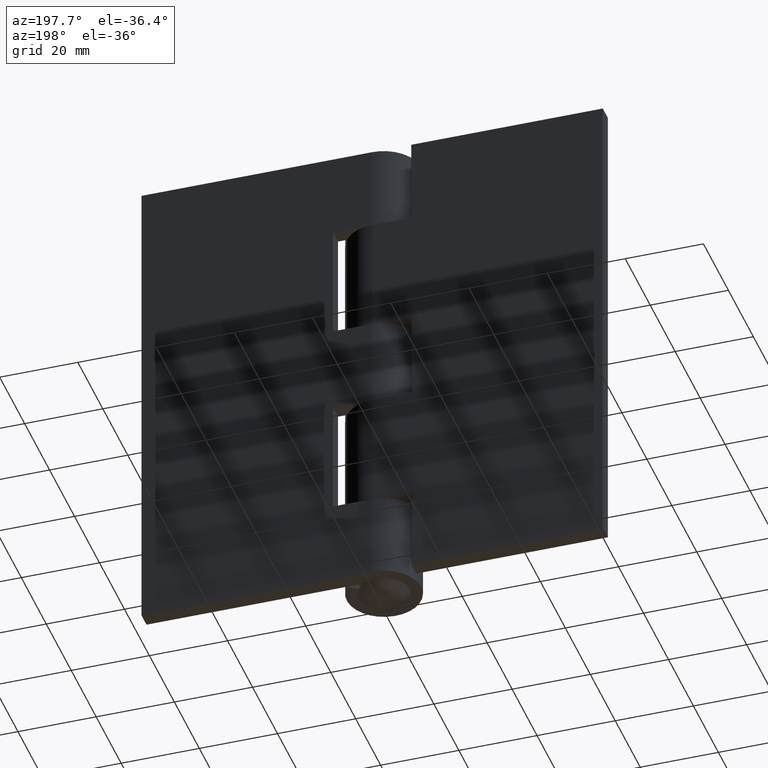
[diagram: clean part render]
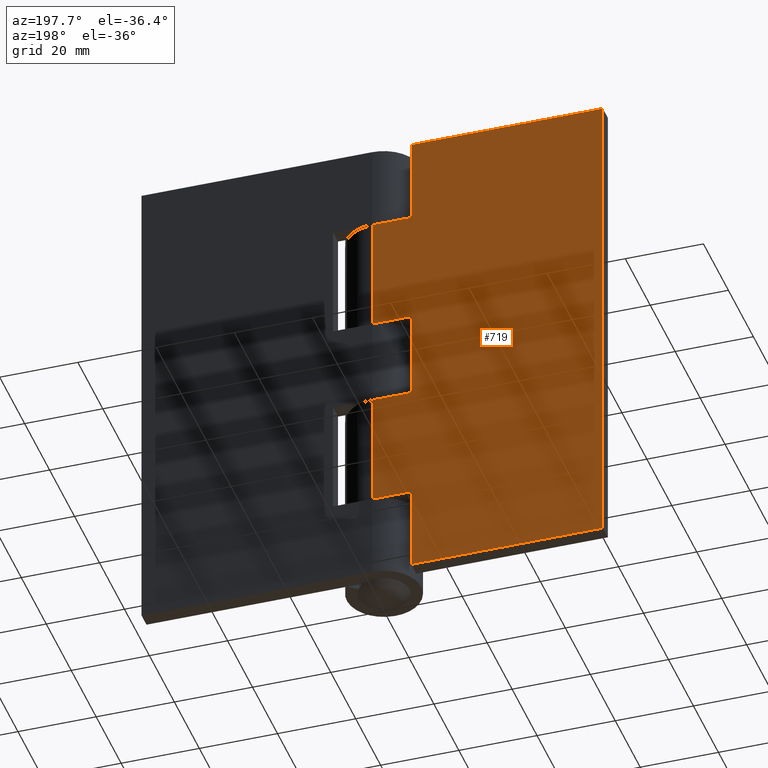
[diagram: same view with one face highlighted and labeled with its STEP entity id]
A machine part, auxiliary view. The second image highlights one B-rep face of the part: STEP entity #719.
In plain terms, the highlighted face is a freeform B-spline surface patch.
Its self-contained STEP definition (entity closure, byte-faithful):
#86=CARTESIAN_POINT('',(0.0,9.500000000000000,52.0));
#87=VERTEX_POINT('',#86);
#107=CARTESIAN_POINT('',(-10.0,9.500000000000000,52.0));
#108=VERTEX_POINT('',#107);
#109=CARTESIAN_POINT('',(-10.0,9.500000000000000,52.0));
#110=CARTESIAN_POINT('',(0.0,9.500000000000000,52.0));
#111=QUASI_UNIFORM_CURVE('',1,(#109,#110),.UNSPECIFIED.,.F.,.U.);
#112=EDGE_CURVE('',#108,#87,#111,.T.);
#136=CARTESIAN_POINT('',(-10.0,9.500000000000000,75.0));
#137=VERTEX_POINT('',#136);
#143=CARTESIAN_POINT('',(0.0,9.500000000000000,75.0));
#144=VERTEX_POINT('',#143);
#145=CARTESIAN_POINT('',(0.0,9.500000000000000,75.0));
#146=CARTESIAN_POINT('',(-10.0,9.500000000000000,75.0));
#147=QUASI_UNIFORM_CURVE('',1,(#145,#146),.UNSPECIFIED.,.F.,.U.);
#148=EDGE_CURVE('',#144,#137,#147,.T.);
#211=CARTESIAN_POINT('',(-10.0,9.500000000000000,75.0));
#212=CARTESIAN_POINT('',(-10.0,9.500000000000000,52.0));
#213=QUASI_UNIFORM_CURVE('',1,(#211,#212),.UNSPECIFIED.,.F.,.U.);
#214=EDGE_CURVE('',#137,#108,#213,.T.);
#234=CARTESIAN_POINT('',(-10.0,9.500000000000000,0.0));
#235=VERTEX_POINT('',#234);
#241=CARTESIAN_POINT('',(-10.0,9.500000000000000,22.0));
#242=VERTEX_POINT('',#241);
#243=CARTESIAN_POINT('',(-10.0,9.500000000000000,0.0));
#244=CARTESIAN_POINT('',(-10.0,9.500000000000000,22.0));
#245=QUASI_UNIFORM_CURVE('',1,(#243,#244),.UNSPECIFIED.,.F.,.U.);
#246=EDGE_CURVE('',#235,#242,#245,.T.);
#269=CARTESIAN_POINT('',(0.0,9.500000000000000,22.0));
#270=VERTEX_POINT('',#269);
#271=CARTESIAN_POINT('',(-10.0,9.500000000000000,22.0));
#272=CARTESIAN_POINT('',(0.0,9.500000000000000,22.0));
#273=QUASI_UNIFORM_CURVE('',1,(#271,#272),.UNSPECIFIED.,.F.,.U.);
#274=EDGE_CURVE('',#242,#270,#273,.T.);
#340=CARTESIAN_POINT('',(-10.0,9.500000000000000,105.0));
#341=VERTEX_POINT('',#340);
#347=CARTESIAN_POINT('',(-10.0,9.500000000000000,127.0));
#348=VERTEX_POINT('',#347);
#349=CARTESIAN_POINT('',(-10.0,9.500000000000000,127.0));
#350=CARTESIAN_POINT('',(-10.0,9.500000000000000,105.0));
#351=QUASI_UNIFORM_CURVE('',1,(#349,#350),.UNSPECIFIED.,.F.,.U.);
#352=EDGE_CURVE('',#348,#341,#351,.T.);
#402=CARTESIAN_POINT('',(0.0,9.500000000000000,105.0));
#403=VERTEX_POINT('',#402);
#423=CARTESIAN_POINT('',(-10.0,9.500000000000000,105.0));
#424=CARTESIAN_POINT('',(0.0,9.500000000000000,105.0));
#425=QUASI_UNIFORM_CURVE('',1,(#423,#424),.UNSPECIFIED.,.F.,.U.);
#426=EDGE_CURVE('',#341,#403,#425,.T.);
#437=CARTESIAN_POINT('',(-59.0,9.500000000000000,0.0));
#438=VERTEX_POINT('',#437);
#453=CARTESIAN_POINT('',(-59.0,9.500000000000000,127.0));
#454=VERTEX_POINT('',#453);
#460=CARTESIAN_POINT('',(-59.0,9.500000000000000,127.0));
#461=CARTESIAN_POINT('',(-59.0,9.500000000000000,0.0));
#462=QUASI_UNIFORM_CURVE('',1,(#460,#461),.UNSPECIFIED.,.F.,.U.);
#463=EDGE_CURVE('',#454,#438,#462,.T.);
#474=CARTESIAN_POINT('',(-10.0,9.500000000000000,127.0));
#475=CARTESIAN_POINT('',(-59.0,9.500000000000000,127.0));
#476=QUASI_UNIFORM_CURVE('',1,(#474,#475),.UNSPECIFIED.,.F.,.U.);
#477=EDGE_CURVE('',#348,#454,#476,.T.);
#493=CARTESIAN_POINT('',(-10.0,9.500000000000000,0.0));
#494=CARTESIAN_POINT('',(-59.0,9.500000000000000,0.0));
#495=QUASI_UNIFORM_CURVE('',1,(#493,#494),.UNSPECIFIED.,.F.,.U.);
#496=EDGE_CURVE('',#235,#438,#495,.T.);
#537=CARTESIAN_POINT('',(0.0,9.500000000000000,52.0));
#538=CARTESIAN_POINT('',(0.0,9.500000000000000,22.0));
#539=QUASI_UNIFORM_CURVE('',1,(#537,#538),.UNSPECIFIED.,.F.,.U.);
#540=EDGE_CURVE('',#87,#270,#539,.T.);
#568=CARTESIAN_POINT('',(0.0,9.500000000000000,105.0));
#569=CARTESIAN_POINT('',(0.0,9.500000000000000,75.0));
#570=QUASI_UNIFORM_CURVE('',1,(#568,#569),.UNSPECIFIED.,.F.,.U.);
#571=EDGE_CURVE('',#403,#144,#570,.T.);
#700=CARTESIAN_POINT('',(-61.947049885646550,9.500000000000000,133.343649753849410));
#701=CARTESIAN_POINT('',(-61.947049885646550,9.500000000000000,-6.343653160254808));
#702=CARTESIAN_POINT('',(2.947051468149863,9.500000000000000,133.343649753849410));
#703=CARTESIAN_POINT('',(2.947051468149863,9.500000000000000,-6.343653160254808));
#704=B_SPLINE_SURFACE_WITH_KNOTS('',1,1,((#700,#702),(#701,#703)),.UNSPECIFIED.,.F.,.F.,.U.,(2,2),(2,2),(0.0,139.687302914104210),(0.0,64.894101353796415),.UNSPECIFIED.);
#705=ORIENTED_EDGE('',*,*,#148,.T.);
#706=ORIENTED_EDGE('',*,*,#214,.T.);
#707=ORIENTED_EDGE('',*,*,#112,.T.);
#708=ORIENTED_EDGE('',*,*,#540,.T.);
#709=ORIENTED_EDGE('',*,*,#274,.F.);
#710=ORIENTED_EDGE('',*,*,#246,.F.);
#711=ORIENTED_EDGE('',*,*,#496,.T.);
#712=ORIENTED_EDGE('',*,*,#463,.F.);
#713=ORIENTED_EDGE('',*,*,#477,.F.);
#714=ORIENTED_EDGE('',*,*,#352,.T.);
#715=ORIENTED_EDGE('',*,*,#426,.T.);
#716=ORIENTED_EDGE('',*,*,#571,.T.);
#717=EDGE_LOOP('',(#705,#706,#707,#708,#709,#710,#711,#712,#713,#714,#715,#716));
#718=FACE_OUTER_BOUND('',#717,.T.);
#719=ADVANCED_FACE('',(#718),#704,.F.);